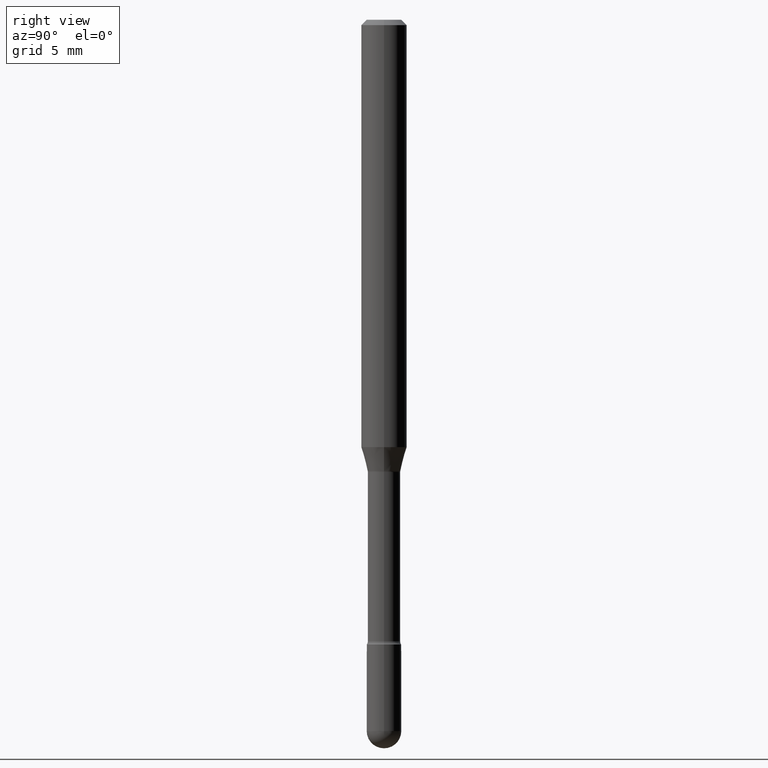
[diagram: clean part render]
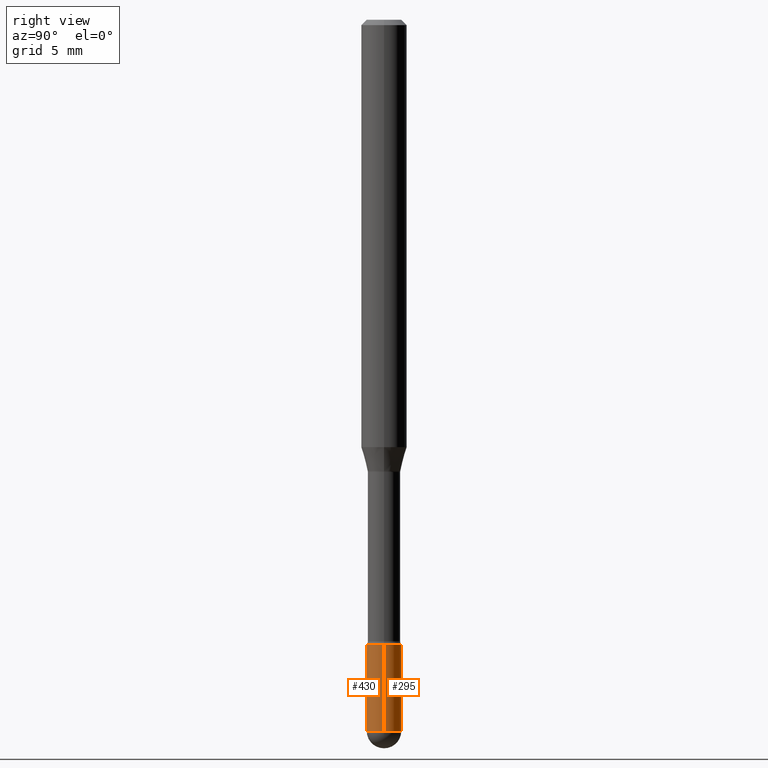
[diagram: same view with one multi-face feature highlighted, each face labeled with its STEP entity id]
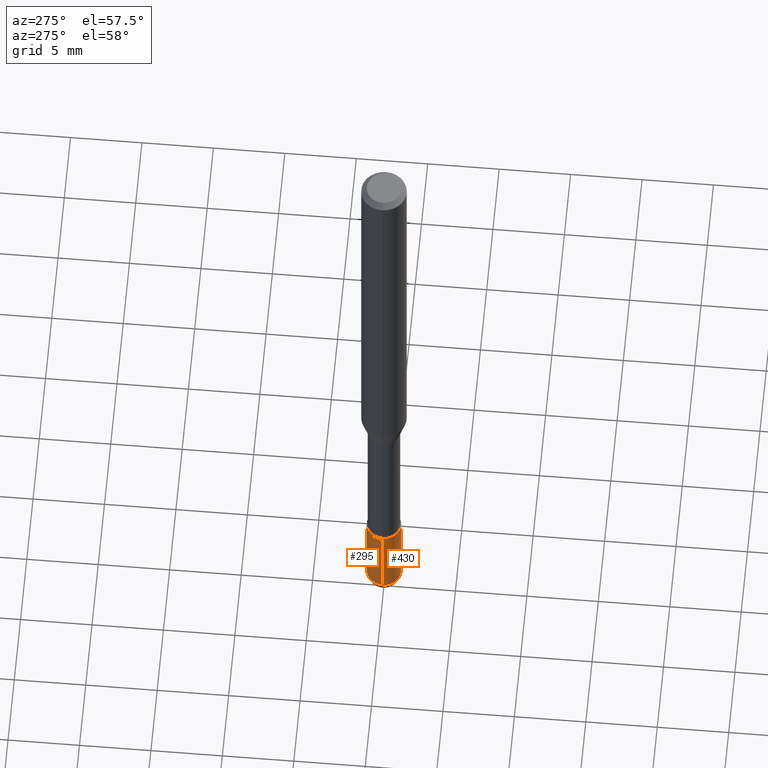
[diagram: same view with one multi-face feature highlighted, each face labeled with its STEP entity id]
A machine part, right view. The highlighted faces form ONE feature: a constant-radius fillet chain: 2 tangent blend faces with common blend radius 1.2065 mm. The faces share edges in the B-rep.
A second angle (auxiliary view) of the same feature is appended — it is thin or edge-on in the first view.
Their STEP definitions:
[1] entity #295 (Cylinder):
#5 = EDGE_CURVE ( 'NONE', #31, #465, #383, .T. ) ;
#27 = DIRECTION ( 'NONE',  ( 1.000000000000000000, -6.982962677686260400E-15, 0.000000000000000000 ) ) ;
#28 = EDGE_CURVE ( 'NONE', #348, #411, #154, .T. ) ;
#30 = DIRECTION ( 'NONE',  ( -2.445468806185136597E-29, 3.491481338843145583E-15, 1.000000000000000000 ) ) ;
#31 = VERTEX_POINT ( 'NONE', #128 ) ;
#49 = VERTEX_POINT ( 'NONE', #75 ) ;
#51 = VECTOR ( 'NONE', #315, 39.37007874015748143 ) ;
#58 = CIRCLE ( 'NONE', #528, 0.04750000000000000749 ) ;
#62 = CIRCLE ( 'NONE', #457, 0.04750000000000000749 ) ;
#75 = CARTESIAN_POINT ( 'NONE',  ( 3.316907271901453357E-16, 0.04749999999999317268, -1.952500000000000346 ) ) ;
#92 = EDGE_LOOP ( 'NONE', ( #483, #547, #197, #249, #289 ) ) ;
#105 = DIRECTION ( 'NONE',  ( 1.000000000000000000, -6.982962677686260400E-15, 0.000000000000000000 ) ) ;
#122 = FACE_OUTER_BOUND ( 'NONE', #92, .T. ) ;
#128 = CARTESIAN_POINT ( 'NONE',  ( -0.04750000000000000749, -6.064996105617570464E-15, -1.952499999999999902 ) ) ;
#133 = CARTESIAN_POINT ( 'NONE',  ( 0.04750000000000000749, -3.316907271900977082E-16, 2.316183968503069432E-30 ) ) ;
#146 = EDGE_CURVE ( 'NONE', #411, #465, #368, .T. ) ;
#150 = CARTESIAN_POINT ( 'NONE',  ( 4.774777844076478914E-29, -6.817117314091241226E-15, -1.952499999999999902 ) ) ;
#154 = LINE ( 'NONE', #133, #51 ) ;
#155 = DIRECTION ( 'NONE',  ( 1.000000000000000000, -6.982962677686261977E-15, 0.000000000000000000 ) ) ;
#178 = VECTOR ( 'NONE', #251, 39.37007874015748143 ) ;
#197 = ORIENTED_EDGE ( 'NONE', *, *, #146, .F. ) ;
#212 = CARTESIAN_POINT ( 'NONE',  ( -0.04749999999999999362, -6.064996105617570464E-15, -1.715000000000000080 ) ) ;
#224 = CARTESIAN_POINT ( 'NONE',  ( 0.000000000000000000, 0.000000000000000000, 0.000000000000000000 ) ) ;
#249 = ORIENTED_EDGE ( 'NONE', *, *, #28, .F. ) ;
#251 = DIRECTION ( 'NONE',  ( -2.445468806185136877E-29, 3.491481338843145188E-15, 1.000000000000000000 ) ) ;
#270 = AXIS2_PLACEMENT_3D ( 'NONE', #439, #355, #155 ) ;
#276 = DIRECTION ( 'NONE',  ( 1.000000000000000000, -6.982962677686266711E-15, 4.876176775795934672E-29 ) ) ;
#286 = DIRECTION ( 'NONE',  ( -2.445468806185136597E-29, 3.491481338843145583E-15, 1.000000000000000000 ) ) ;
#289 = ORIENTED_EDGE ( 'NONE', *, *, #522, .T. ) ;
#295 = ADVANCED_FACE ( 'NONE', ( #122 ), #432, .T. ) ;
#307 = DIRECTION ( 'NONE',  ( -2.445468806185136597E-29, 3.491481338843145583E-15, 1.000000000000000000 ) ) ;
#315 = DIRECTION ( 'NONE',  ( -2.445468806185136877E-29, 3.491481338843145188E-15, 1.000000000000000000 ) ) ;
#348 = VERTEX_POINT ( 'NONE', #534 ) ;
#355 = DIRECTION ( 'NONE',  ( -2.445468806185136597E-29, 3.491481338843145583E-15, 1.000000000000000000 ) ) ;
#358 = AXIS2_PLACEMENT_3D ( 'NONE', #224, #307, #276 ) ;
#368 = CIRCLE ( 'NONE', #270, 0.04749999999999999362 ) ;
#374 = EDGE_CURVE ( 'NONE', #49, #31, #62, .T. ) ;
#377 = CARTESIAN_POINT ( 'NONE',  ( -0.04750000000000000749, 3.375077994860476415E-16, -2.336494167871080260E-30 ) ) ;
#383 = LINE ( 'NONE', #377, #178 ) ;
#411 = VERTEX_POINT ( 'NONE', #440 ) ;
#432 = CYLINDRICAL_SURFACE ( 'NONE', #358, 0.04750000000000000749 ) ;
#439 = CARTESIAN_POINT ( 'NONE',  ( 4.193979002607509757E-29, -5.987890496115994688E-15, -1.715000000000000080 ) ) ;
#440 = CARTESIAN_POINT ( 'NONE',  ( 0.04749999999999999362, -6.319581223306092199E-15, -1.715000000000000080 ) ) ;
#457 = AXIS2_PLACEMENT_3D ( 'NONE', #150, #286, #105 ) ;
#465 = VERTEX_POINT ( 'NONE', #212 ) ;
#483 = ORIENTED_EDGE ( 'NONE', *, *, #374, .T. ) ;
#512 = CARTESIAN_POINT ( 'NONE',  ( 4.774777844076478914E-29, -6.817117314091241226E-15, -1.952499999999999902 ) ) ;
#522 = EDGE_CURVE ( 'NONE', #348, #49, #58, .T. ) ;
#528 = AXIS2_PLACEMENT_3D ( 'NONE', #512, #30, #27 ) ;
#534 = CARTESIAN_POINT ( 'NONE',  ( 0.04750000000000000749, -6.734194632293715468E-15, -1.952499999999999902 ) ) ;
#547 = ORIENTED_EDGE ( 'NONE', *, *, #5, .T. ) ;
[2] entity #430 (Cylinder):
#5 = EDGE_CURVE ( 'NONE', #31, #465, #383, .T. ) ;
#12 = DIRECTION ( 'NONE',  ( -2.445468806185136597E-29, 3.491481338843145583E-15, 1.000000000000000000 ) ) ;
#28 = EDGE_CURVE ( 'NONE', #348, #411, #154, .T. ) ;
#31 = VERTEX_POINT ( 'NONE', #128 ) ;
#45 = DIRECTION ( 'NONE',  ( -2.445468806185136597E-29, 3.491481338843145583E-15, 1.000000000000000000 ) ) ;
#48 = CARTESIAN_POINT ( 'NONE',  ( 4.774777844076478914E-29, -6.817117314091241226E-15, -1.952499999999999902 ) ) ;
#51 = VECTOR ( 'NONE', #315, 39.37007874015748143 ) ;
#60 = EDGE_LOOP ( 'NONE', ( #423, #531, #402, #346, #239 ) ) ;
#99 = DIRECTION ( 'NONE',  ( -2.445468806185136597E-29, 3.491481338843145583E-15, 1.000000000000000000 ) ) ;
#109 = CARTESIAN_POINT ( 'NONE',  ( 4.774777844076478914E-29, -6.817117314091241226E-15, -1.952499999999999902 ) ) ;
#128 = CARTESIAN_POINT ( 'NONE',  ( -0.04750000000000000749, -6.064996105617570464E-15, -1.952499999999999902 ) ) ;
#133 = CARTESIAN_POINT ( 'NONE',  ( 0.04750000000000000749, -3.316907271900977082E-16, 2.316183968503069432E-30 ) ) ;
#142 = CARTESIAN_POINT ( 'NONE',  ( 0.000000000000000000, 0.000000000000000000, 0.000000000000000000 ) ) ;
#154 = LINE ( 'NONE', #133, #51 ) ;
#160 = CIRCLE ( 'NONE', #435, 0.04750000000000000749 ) ;
#178 = VECTOR ( 'NONE', #251, 39.37007874015748143 ) ;
#185 = CIRCLE ( 'NONE', #266, 0.04750000000000000749 ) ;
#189 = DIRECTION ( 'NONE',  ( 1.000000000000000000, -6.982962677686260400E-15, 0.000000000000000000 ) ) ;
#209 = DIRECTION ( 'NONE',  ( -2.445468806185136597E-29, 3.491481338843145583E-15, 1.000000000000000000 ) ) ;
#212 = CARTESIAN_POINT ( 'NONE',  ( -0.04749999999999999362, -6.064996105617570464E-15, -1.715000000000000080 ) ) ;
#236 = DIRECTION ( 'NONE',  ( 1.000000000000000000, -6.982962677686260400E-15, 0.000000000000000000 ) ) ;
#239 = ORIENTED_EDGE ( 'NONE', *, *, #514, .F. ) ;
#251 = DIRECTION ( 'NONE',  ( -2.445468806185136877E-29, 3.491481338843145188E-15, 1.000000000000000000 ) ) ;
#266 = AXIS2_PLACEMENT_3D ( 'NONE', #48, #12, #189 ) ;
#271 = AXIS2_PLACEMENT_3D ( 'NONE', #142, #99, #282 ) ;
#282 = DIRECTION ( 'NONE',  ( 1.000000000000000000, -6.982962677686266711E-15, 4.876176775795934672E-29 ) ) ;
#312 = AXIS2_PLACEMENT_3D ( 'NONE', #339, #209, #548 ) ;
#315 = DIRECTION ( 'NONE',  ( -2.445468806185136877E-29, 3.491481338843145188E-15, 1.000000000000000000 ) ) ;
#339 = CARTESIAN_POINT ( 'NONE',  ( 4.193979002607509757E-29, -5.987890496115994688E-15, -1.715000000000000080 ) ) ;
#346 = ORIENTED_EDGE ( 'NONE', *, *, #28, .T. ) ;
#348 = VERTEX_POINT ( 'NONE', #534 ) ;
#361 = FACE_OUTER_BOUND ( 'NONE', #60, .T. ) ;
#377 = CARTESIAN_POINT ( 'NONE',  ( -0.04750000000000000749, 3.375077994860476415E-16, -2.336494167871080260E-30 ) ) ;
#383 = LINE ( 'NONE', #377, #178 ) ;
#402 = ORIENTED_EDGE ( 'NONE', *, *, #415, .T. ) ;
#411 = VERTEX_POINT ( 'NONE', #440 ) ;
#415 = EDGE_CURVE ( 'NONE', #554, #348, #160, .T. ) ;
#422 = EDGE_CURVE ( 'NONE', #31, #554, #185, .T. ) ;
#423 = ORIENTED_EDGE ( 'NONE', *, *, #5, .F. ) ;
#430 = ADVANCED_FACE ( 'NONE', ( #361 ), #537, .T. ) ;
#435 = AXIS2_PLACEMENT_3D ( 'NONE', #109, #45, #236 ) ;
#440 = CARTESIAN_POINT ( 'NONE',  ( 0.04749999999999999362, -6.319581223306092199E-15, -1.715000000000000080 ) ) ;
#461 = CARTESIAN_POINT ( 'NONE',  ( -3.375077994859997675E-16, -0.04750000000000682149, -1.952499999999999680 ) ) ;
#465 = VERTEX_POINT ( 'NONE', #212 ) ;
#514 = EDGE_CURVE ( 'NONE', #465, #411, #552, .T. ) ;
#531 = ORIENTED_EDGE ( 'NONE', *, *, #422, .T. ) ;
#534 = CARTESIAN_POINT ( 'NONE',  ( 0.04750000000000000749, -6.734194632293715468E-15, -1.952499999999999902 ) ) ;
#537 = CYLINDRICAL_SURFACE ( 'NONE', #271, 0.04750000000000000749 ) ;
#548 = DIRECTION ( 'NONE',  ( 1.000000000000000000, -6.982962677686261977E-15, 0.000000000000000000 ) ) ;
#552 = CIRCLE ( 'NONE', #312, 0.04749999999999999362 ) ;
#554 = VERTEX_POINT ( 'NONE', #461 ) ;